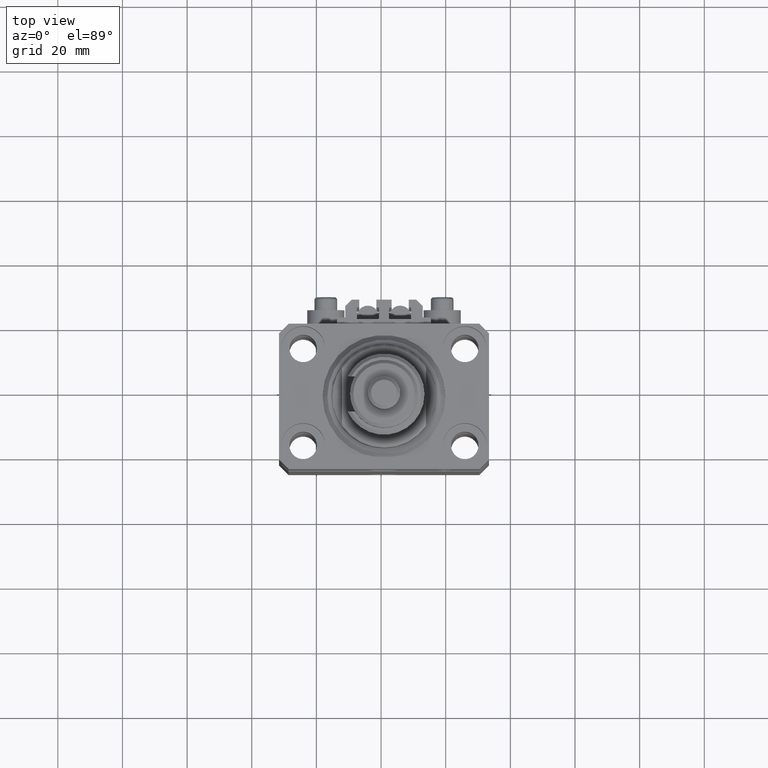
[diagram: clean part render]
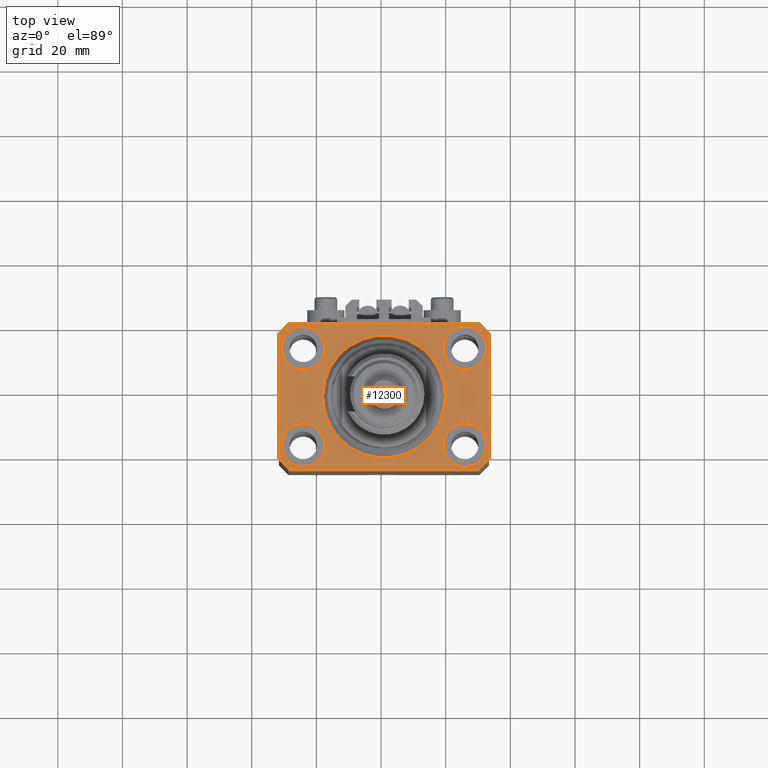
[diagram: same view with one face highlighted and labeled with its STEP entity id]
A machine part, top view. The second image highlights one B-rep face of the part: STEP entity #12300.
In plain terms, the highlighted planar face has unit normal (0, 0, 1).
Its self-contained STEP definition (entity closure, byte-faithful):
#157 = LINE ( 'NONE', #15993, #47071 ) ;
#319 = EDGE_CURVE ( 'NONE', #1650, #34247, #16866, .T. ) ;
#520 = AXIS2_PLACEMENT_3D ( 'NONE', #47227, #32693, #769 ) ;
#769 = DIRECTION ( 'NONE',  ( 1.000000000000000000, 0.000000000000000000, 0.000000000000000000 ) ) ;
#978 = FACE_OUTER_BOUND ( 'NONE', #47960, .T. ) ;
#1086 = VECTOR ( 'NONE', #49804, 1000.000000000000000 ) ;
#1437 = CARTESIAN_POINT ( 'NONE',  ( 32.49999999999702993, 19.49999999999945999, 0.000000000000000000 ) ) ;
#1502 = FACE_BOUND ( 'NONE', #50677, .T. ) ;
#1650 = VERTEX_POINT ( 'NONE', #2647 ) ;
#1802 = VECTOR ( 'NONE', #20283, 1000.000000000000000 ) ;
#1893 = ORIENTED_EDGE ( 'NONE', *, *, #33719, .F. ) ;
#1903 = EDGE_CURVE ( 'NONE', #40612, #48177, #7914, .T. ) ;
#1955 = AXIS2_PLACEMENT_3D ( 'NONE', #10525, #45575, #10010 ) ;
#2468 = DIRECTION ( 'NONE',  ( -0.7071067811865352493, 0.7071067811865597852, 0.000000000000000000 ) ) ;
#2647 = CARTESIAN_POINT ( 'NONE',  ( 18.25000000004154543, 15.00000000000000888, 0.000000000000000000 ) ) ;
#2872 = DIRECTION ( 'NONE',  ( 0.000000000000000000, 0.000000000000000000, 1.000000000000000000 ) ) ;
#3089 = CARTESIAN_POINT ( 'NONE',  ( -25.00000000000000355, 15.00000000000000000, 0.000000000000000000 ) ) ;
#4381 = CIRCLE ( 'NONE', #15165, 6.749999999958452790 ) ;
#4444 = ORIENTED_EDGE ( 'NONE', *, *, #38502, .T. ) ;
#4778 = CARTESIAN_POINT ( 'NONE',  ( 32.49999999999651124, -19.49999999999949196, 0.000000000000000000 ) ) ;
#4823 = ORIENTED_EDGE ( 'NONE', *, *, #7142, .T. ) ;
#4900 = EDGE_CURVE ( 'NONE', #45287, #17418, #29313, .T. ) ;
#4929 = DIRECTION ( 'NONE',  ( 0.000000000000000000, 0.000000000000000000, 1.000000000000000000 ) ) ;
#4985 = DIRECTION ( 'NONE',  ( -0.7071067811865474617, -0.7071067811865474617, 0.000000000000000000 ) ) ;
#5217 = CARTESIAN_POINT ( 'NONE',  ( 29.49999999999707967, 22.49999999999951328, 0.000000000000000000 ) ) ;
#5360 = VECTOR ( 'NONE', #41240, 1000.000000000000000 ) ;
#5430 = VECTOR ( 'NONE', #38341, 1000.000000000000000 ) ;
#5479 = CIRCLE ( 'NONE', #520, 6.749999999977465137 ) ;
#5901 = CIRCLE ( 'NONE', #11679, 19.00000000000000000 ) ;
#6017 = CARTESIAN_POINT ( 'NONE',  ( 32.49999999999702993, 19.49999999999945999, 0.000000000000000000 ) ) ;
#6050 = VERTEX_POINT ( 'NONE', #42725 ) ;
#6245 = ORIENTED_EDGE ( 'NONE', *, *, #35263, .F. ) ;
#6657 = DIRECTION ( 'NONE',  ( 1.000000000000000000, 0.000000000000000000, 0.000000000000000000 ) ) ;
#7142 = EDGE_CURVE ( 'NONE', #29747, #43946, #14450, .T. ) ;
#7173 = DIRECTION ( 'NONE',  ( 0.000000000000000000, 0.000000000000000000, 1.000000000000000000 ) ) ;
#7591 = CARTESIAN_POINT ( 'NONE',  ( 31.74999999995845101, 15.00000000000000888, 0.000000000000000000 ) ) ;
#7882 = CARTESIAN_POINT ( 'NONE',  ( 29.49999999999650413, -22.49999999999949196, 0.000000000000000000 ) ) ;
#7914 = CIRCLE ( 'NONE', #25334, 6.749999999977465137 ) ;
#8599 = DIRECTION ( 'NONE',  ( 0.000000000000000000, 0.000000000000000000, 1.000000000000000000 ) ) ;
#8752 = FACE_BOUND ( 'NONE', #43426, .T. ) ;
#8892 = VERTEX_POINT ( 'NONE', #40829 ) ;
#9041 = ORIENTED_EDGE ( 'NONE', *, *, #16246, .T. ) ;
#9204 = EDGE_CURVE ( 'NONE', #50822, #8892, #16265, .T. ) ;
#10010 = DIRECTION ( 'NONE',  ( 1.000000000000000000, 0.000000000000000000, 0.000000000000000000 ) ) ;
#10460 = AXIS2_PLACEMENT_3D ( 'NONE', #42060, #2872, #50366 ) ;
#10525 = CARTESIAN_POINT ( 'NONE',  ( 24.99999999999999645, 15.00000000000000888, 0.000000000000000000 ) ) ;
#11005 = CIRCLE ( 'NONE', #19312, 6.750000000041541881 ) ;
#11679 = AXIS2_PLACEMENT_3D ( 'NONE', #24948, #8599, #24698 ) ;
#12112 = ORIENTED_EDGE ( 'NONE', *, *, #27415, .T. ) ;
#12300 = ADVANCED_FACE ( 'NONE', ( #43819, #1502, #8752, #17321, #48982, #978 ), #40431, .T. ) ;
#12641 = AXIS2_PLACEMENT_3D ( 'NONE', #3089, #23062, #46422 ) ;
#12714 = CARTESIAN_POINT ( 'NONE',  ( 25.00000000000000355, -15.00000000000000000, 0.000000000000000000 ) ) ;
#12870 = CARTESIAN_POINT ( 'NONE',  ( 29.49999999999707967, 22.49999999999951328, 0.000000000000000000 ) ) ;
#13276 = LINE ( 'NONE', #40543, #45793 ) ;
#14450 = LINE ( 'NONE', #46368, #5430 ) ;
#15165 = AXIS2_PLACEMENT_3D ( 'NONE', #15218, #7173, #6657 ) ;
#15218 = CARTESIAN_POINT ( 'NONE',  ( 24.99999999999999645, 15.00000000000000888, 0.000000000000000000 ) ) ;
#15638 = VERTEX_POINT ( 'NONE', #31954 ) ;
#15904 = AXIS2_PLACEMENT_3D ( 'NONE', #37580, #30030, #29774 ) ;
#15993 = CARTESIAN_POINT ( 'NONE',  ( -32.49999999999650413, -19.49999999999949907, 0.000000000000000000 ) ) ;
#16246 = EDGE_CURVE ( 'NONE', #43946, #45287, #157, .T. ) ;
#16265 = CIRCLE ( 'NONE', #10460, 19.00000000000000000 ) ;
#16705 = CARTESIAN_POINT ( 'NONE',  ( -32.49999999999650413, -19.49999999999949907, 0.000000000000000000 ) ) ;
#16866 = CIRCLE ( 'NONE', #1955, 6.749999999958452790 ) ;
#17121 = DIRECTION ( 'NONE',  ( 1.000000000000000000, 0.000000000000000000, 0.000000000000000000 ) ) ;
#17321 = FACE_BOUND ( 'NONE', #36777, .T. ) ;
#17406 = ORIENTED_EDGE ( 'NONE', *, *, #319, .F. ) ;
#17418 = VERTEX_POINT ( 'NONE', #7882 ) ;
#17682 = CARTESIAN_POINT ( 'NONE',  ( -29.49999999999650413, -22.49999999999949907, 0.000000000000000000 ) ) ;
#19312 = AXIS2_PLACEMENT_3D ( 'NONE', #24401, #32963, #44881 ) ;
#19699 = AXIS2_PLACEMENT_3D ( 'NONE', #24851, #28757, #48727 ) ;
#20085 = CIRCLE ( 'NONE', #37525, 6.750000000041541881 ) ;
#20133 = ORIENTED_EDGE ( 'NONE', *, *, #45600, .F. ) ;
#20283 = DIRECTION ( 'NONE',  ( -1.000000000000000000, -2.352167425053553784E-16, 0.000000000000000000 ) ) ;
#20425 = ORIENTED_EDGE ( 'NONE', *, *, #27340, .F. ) ;
#20934 = DIRECTION ( 'NONE',  ( 0.000000000000000000, 0.000000000000000000, 1.000000000000000000 ) ) ;
#21520 = CARTESIAN_POINT ( 'NONE',  ( -29.49999999999650413, -22.49999999999949907, 0.000000000000000000 ) ) ;
#21747 = VERTEX_POINT ( 'NONE', #49456 ) ;
#22913 = EDGE_CURVE ( 'NONE', #8892, #50822, #5901, .T. ) ;
#23062 = DIRECTION ( 'NONE',  ( 0.000000000000000000, 0.000000000000000000, 1.000000000000000000 ) ) ;
#23930 = LINE ( 'NONE', #5217, #1802 ) ;
#24401 = CARTESIAN_POINT ( 'NONE',  ( -25.00000000000000355, -15.00000000000000000, 0.000000000000000000 ) ) ;
#24698 = DIRECTION ( 'NONE',  ( 1.000000000000000000, 0.000000000000000000, 0.000000000000000000 ) ) ;
#24851 = CARTESIAN_POINT ( 'NONE',  ( 0.000000000000000000, 0.000000000000000000, 0.000000000000000000 ) ) ;
#24948 = CARTESIAN_POINT ( 'NONE',  ( 0.000000000000000000, 0.000000000000000000, 0.000000000000000000 ) ) ;
#25334 = AXIS2_PLACEMENT_3D ( 'NONE', #12714, #4929, #17121 ) ;
#25670 = LINE ( 'NONE', #50330, #1086 ) ;
#26095 = VERTEX_POINT ( 'NONE', #6017 ) ;
#26529 = EDGE_CURVE ( 'NONE', #47803, #6050, #44939, .T. ) ;
#26839 = LINE ( 'NONE', #30226, #50739 ) ;
#27340 = EDGE_CURVE ( 'NONE', #27568, #21747, #11005, .T. ) ;
#27415 = EDGE_CURVE ( 'NONE', #17418, #48003, #25670, .T. ) ;
#27518 = CIRCLE ( 'NONE', #15904, 6.750000000022533087 ) ;
#27568 = VERTEX_POINT ( 'NONE', #30614 ) ;
#27712 = EDGE_CURVE ( 'NONE', #6050, #47803, #27518, .T. ) ;
#28186 = CARTESIAN_POINT ( 'NONE',  ( -32.49999999999650413, 19.49999999999949907, 0.000000000000000000 ) ) ;
#28757 = DIRECTION ( 'NONE',  ( 0.000000000000000000, 0.000000000000000000, 1.000000000000000000 ) ) ;
#29313 = LINE ( 'NONE', #21520, #5360 ) ;
#29747 = VERTEX_POINT ( 'NONE', #28186 ) ;
#29774 = DIRECTION ( 'NONE',  ( 1.000000000000000000, 0.000000000000000000, 0.000000000000000000 ) ) ;
#29982 = CARTESIAN_POINT ( 'NONE',  ( -19.00000000000000000, 2.326828918379970970E-15, 0.000000000000000000 ) ) ;
#30030 = DIRECTION ( 'NONE',  ( 0.000000000000000000, 0.000000000000000000, 1.000000000000000000 ) ) ;
#30226 = CARTESIAN_POINT ( 'NONE',  ( 32.49999999999651124, -19.49999999999949196, 0.000000000000000000 ) ) ;
#30614 = CARTESIAN_POINT ( 'NONE',  ( -31.75000000004154899, -15.00000000000000000, 0.000000000000000000 ) ) ;
#30740 = DIRECTION ( 'NONE',  ( 1.334402673828349134E-14, 1.000000000000000000, 0.000000000000000000 ) ) ;
#30819 = ORIENTED_EDGE ( 'NONE', *, *, #32291, .T. ) ;
#31954 = CARTESIAN_POINT ( 'NONE',  ( -29.49999999999650413, 22.49999999999949907, 0.000000000000000000 ) ) ;
#32291 = EDGE_CURVE ( 'NONE', #43790, #15638, #23930, .T. ) ;
#32297 = ORIENTED_EDGE ( 'NONE', *, *, #4900, .T. ) ;
#32693 = DIRECTION ( 'NONE',  ( 0.000000000000000000, 0.000000000000000000, 1.000000000000000000 ) ) ;
#32963 = DIRECTION ( 'NONE',  ( 0.000000000000000000, 0.000000000000000000, 1.000000000000000000 ) ) ;
#33412 = DIRECTION ( 'NONE',  ( 1.000000000000000000, 0.000000000000000000, 0.000000000000000000 ) ) ;
#33719 = EDGE_CURVE ( 'NONE', #21747, #27568, #20085, .T. ) ;
#34247 = VERTEX_POINT ( 'NONE', #7591 ) ;
#34592 = EDGE_CURVE ( 'NONE', #48003, #26095, #26839, .T. ) ;
#34894 = EDGE_LOOP ( 'NONE', ( #45551, #35238 ) ) ;
#35238 = ORIENTED_EDGE ( 'NONE', *, *, #9204, .F. ) ;
#35263 = EDGE_CURVE ( 'NONE', #34247, #1650, #4381, .T. ) ;
#35387 = CARTESIAN_POINT ( 'NONE',  ( 31.74999999997746869, -15.00000000000000000, 0.000000000000000000 ) ) ;
#36777 = EDGE_LOOP ( 'NONE', ( #43261, #43781 ) ) ;
#37525 = AXIS2_PLACEMENT_3D ( 'NONE', #45579, #20934, #33412 ) ;
#37580 = CARTESIAN_POINT ( 'NONE',  ( -25.00000000000000355, 15.00000000000000000, 0.000000000000000000 ) ) ;
#37713 = EDGE_CURVE ( 'NONE', #15638, #29747, #13276, .T. ) ;
#38341 = DIRECTION ( 'NONE',  ( 0.000000000000000000, -1.000000000000000000, 0.000000000000000000 ) ) ;
#38502 = EDGE_CURVE ( 'NONE', #26095, #43790, #45020, .T. ) ;
#39873 = CARTESIAN_POINT ( 'NONE',  ( 18.25000000002253842, -15.00000000000000000, 0.000000000000000000 ) ) ;
#40431 = PLANE ( 'NONE',  #19699 ) ;
#40543 = CARTESIAN_POINT ( 'NONE',  ( -29.49999999999650413, 22.49999999999949907, 0.000000000000000000 ) ) ;
#40612 = VERTEX_POINT ( 'NONE', #39873 ) ;
#40762 = ORIENTED_EDGE ( 'NONE', *, *, #34592, .T. ) ;
#40829 = CARTESIAN_POINT ( 'NONE',  ( 19.00000000000000000, 0.000000000000000000, 0.000000000000000000 ) ) ;
#41240 = DIRECTION ( 'NONE',  ( 1.000000000000000000, 1.176083712526788232E-16, 0.000000000000000000 ) ) ;
#42060 = CARTESIAN_POINT ( 'NONE',  ( 0.000000000000000000, 0.000000000000000000, 0.000000000000000000 ) ) ;
#42725 = CARTESIAN_POINT ( 'NONE',  ( -18.24999999997747224, 15.00000000000000000, 0.000000000000000000 ) ) ;
#43261 = ORIENTED_EDGE ( 'NONE', *, *, #27712, .F. ) ;
#43426 = EDGE_LOOP ( 'NONE', ( #6245, #17406 ) ) ;
#43781 = ORIENTED_EDGE ( 'NONE', *, *, #26529, .F. ) ;
#43790 = VERTEX_POINT ( 'NONE', #12870 ) ;
#43819 = FACE_BOUND ( 'NONE', #49721, .T. ) ;
#43946 = VERTEX_POINT ( 'NONE', #16705 ) ;
#44157 = VECTOR ( 'NONE', #2468, 1000.000000000000000 ) ;
#44881 = DIRECTION ( 'NONE',  ( 1.000000000000000000, 0.000000000000000000, 0.000000000000000000 ) ) ;
#44939 = CIRCLE ( 'NONE', #12641, 6.750000000022533087 ) ;
#45020 = LINE ( 'NONE', #1437, #44157 ) ;
#45287 = VERTEX_POINT ( 'NONE', #17682 ) ;
#45316 = CARTESIAN_POINT ( 'NONE',  ( -31.75000000002253842, 15.00000000000000000, 0.000000000000000000 ) ) ;
#45551 = ORIENTED_EDGE ( 'NONE', *, *, #22913, .F. ) ;
#45575 = DIRECTION ( 'NONE',  ( 0.000000000000000000, 0.000000000000000000, 1.000000000000000000 ) ) ;
#45579 = CARTESIAN_POINT ( 'NONE',  ( -25.00000000000000355, -15.00000000000000000, 0.000000000000000000 ) ) ;
#45599 = ORIENTED_EDGE ( 'NONE', *, *, #37713, .T. ) ;
#45600 = EDGE_CURVE ( 'NONE', #48177, #40612, #5479, .T. ) ;
#45793 = VECTOR ( 'NONE', #4985, 1000.000000000000114 ) ;
#46368 = CARTESIAN_POINT ( 'NONE',  ( -32.49999999999650413, 19.49999999999949907, 0.000000000000000000 ) ) ;
#46422 = DIRECTION ( 'NONE',  ( 1.000000000000000000, 0.000000000000000000, 0.000000000000000000 ) ) ;
#47071 = VECTOR ( 'NONE', #47659, 1000.000000000000114 ) ;
#47227 = CARTESIAN_POINT ( 'NONE',  ( 25.00000000000000355, -15.00000000000000000, 0.000000000000000000 ) ) ;
#47659 = DIRECTION ( 'NONE',  ( 0.7071067811865474617, -0.7071067811865474617, 0.000000000000000000 ) ) ;
#47803 = VERTEX_POINT ( 'NONE', #45316 ) ;
#47960 = EDGE_LOOP ( 'NONE', ( #30819, #45599, #4823, #9041, #32297, #12112, #40762, #4444 ) ) ;
#48003 = VERTEX_POINT ( 'NONE', #4778 ) ;
#48177 = VERTEX_POINT ( 'NONE', #35387 ) ;
#48727 = DIRECTION ( 'NONE',  ( 1.000000000000000000, 0.000000000000000000, -0.000000000000000000 ) ) ;
#48982 = FACE_BOUND ( 'NONE', #34894, .T. ) ;
#49456 = CARTESIAN_POINT ( 'NONE',  ( -18.24999999995846167, -15.00000000000000000, 0.000000000000000000 ) ) ;
#49721 = EDGE_LOOP ( 'NONE', ( #1893, #20425 ) ) ;
#49804 = DIRECTION ( 'NONE',  ( 0.7071067811865483499, 0.7071067811865466846, 0.000000000000000000 ) ) ;
#50330 = CARTESIAN_POINT ( 'NONE',  ( 29.49999999999650413, -22.49999999999949196, 0.000000000000000000 ) ) ;
#50366 = DIRECTION ( 'NONE',  ( 1.000000000000000000, 0.000000000000000000, 0.000000000000000000 ) ) ;
#50677 = EDGE_LOOP ( 'NONE', ( #20133, #51010 ) ) ;
#50739 = VECTOR ( 'NONE', #30740, 1000.000000000000000 ) ;
#50822 = VERTEX_POINT ( 'NONE', #29982 ) ;
#51010 = ORIENTED_EDGE ( 'NONE', *, *, #1903, .F. ) ;